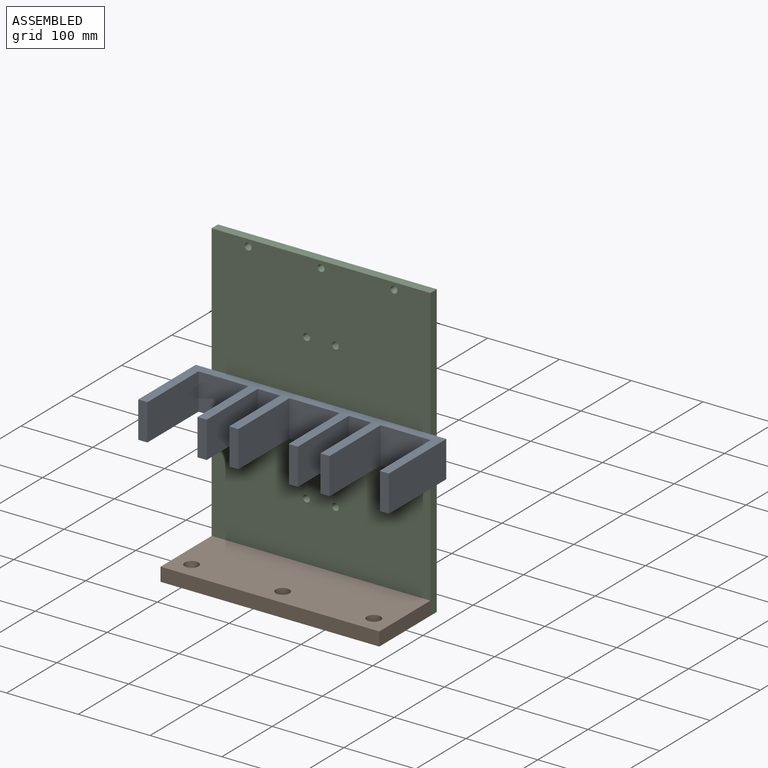
[diagram: assembled view]
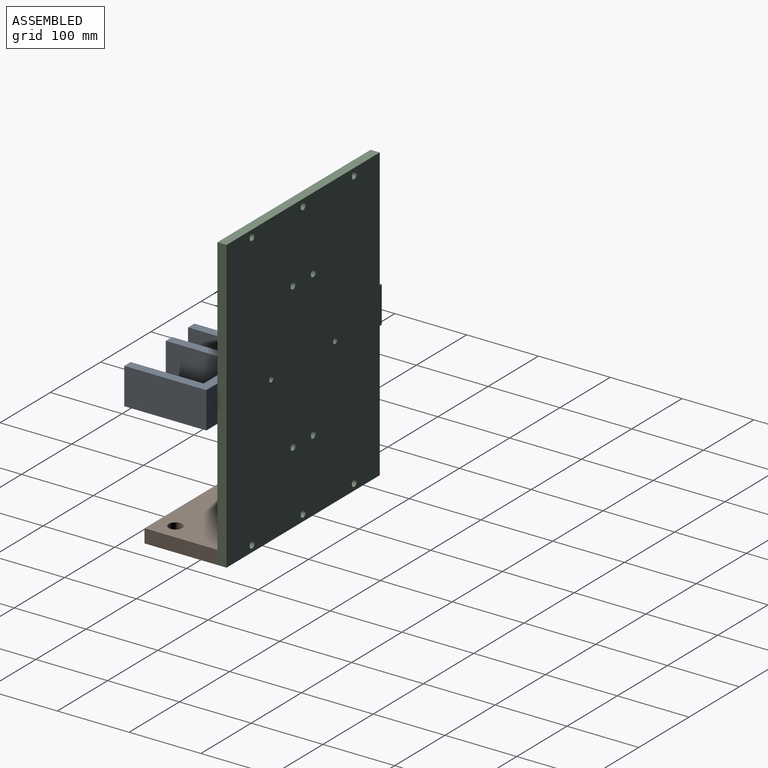
[diagram: assembled view, second angle]
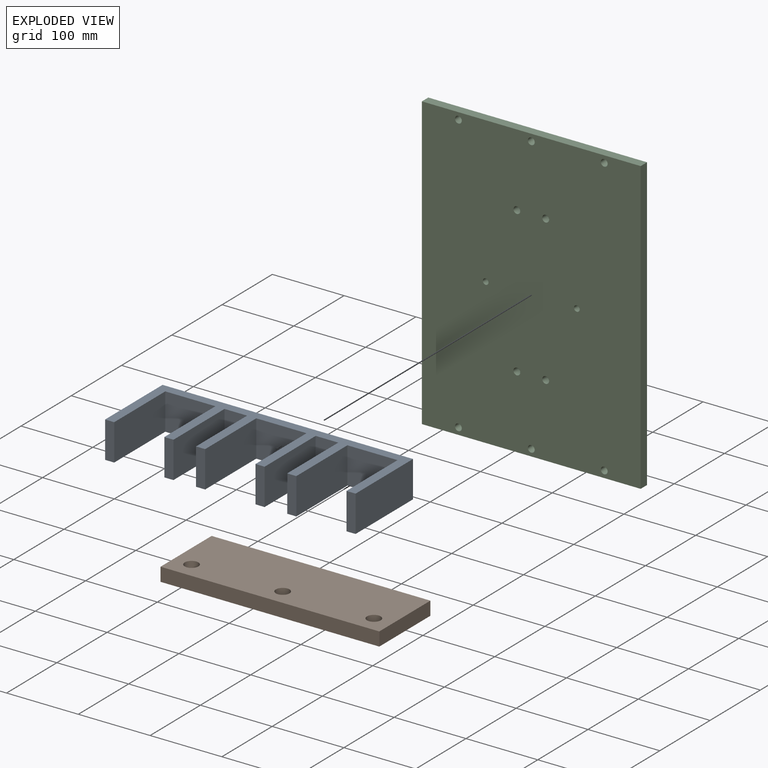
[diagram: exploded view]
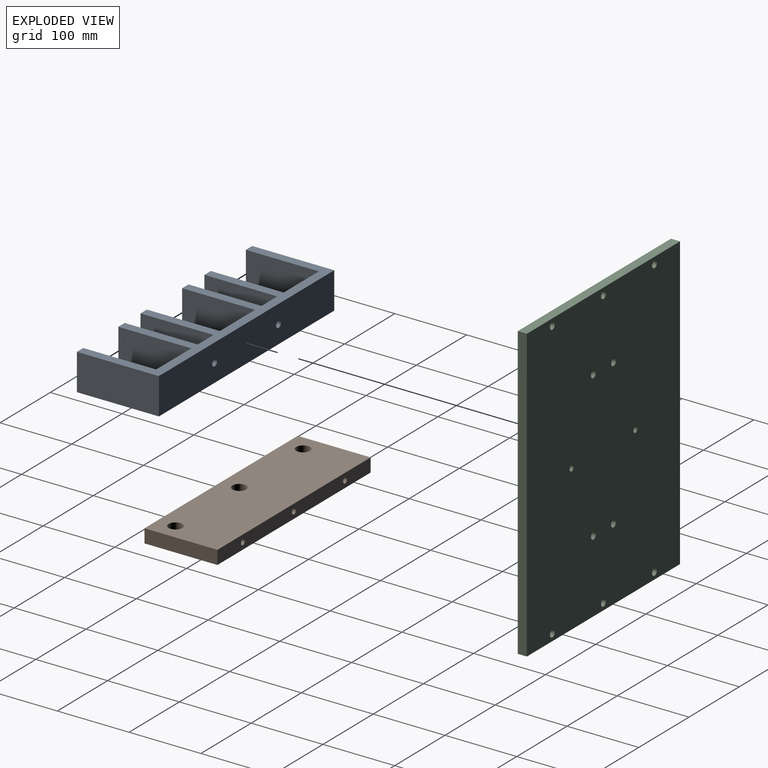
[diagram: exploded view, second angle]
ASSEMBLY  parts=3 mates=2
PART A: 28 faces, bbox 349x114.3x50.8 mm
  f0: plane 114.3x50.8mm, normal (1,0,0), area 5806.4mm2, adj f1,f23,f24,f25
  f1: plane 349x50.8mm, normal (0,1,0), area 17586.5mm2, adj f0,f2,f24,f25,f26,f27
  f2: plane 114.3x50.8mm, normal (-1,0,0), area 5806.4mm2, adj f1,f3,f24,f25
  f3: plane 50.8x12.7mm, normal (0,-1,0), area 645.2mm2, adj f2,f4,f24,f25
  f4: plane 101.6x50.8mm, normal (1,0,0), area 5161.3mm2, adj f3,f5,f24,f25
  f5: plane 69.85x50.8mm, normal (0,-1,0), area 3548.4mm2, adj f4,f6,f24,f25
  f6: plane 101.6x50.8mm, normal (-1,0,0), area 5161.3mm2, adj f5,f7,f24,f25
  f7: plane 50.8x12.7mm, normal (0,-1,0), area 645.2mm2, adj f6,f8,f24,f25
  f8: plane 101.6x50.8mm, normal (1,0,0), area 5161.3mm2, adj f7,f9,f24,f25
  f9: plane 50.8x31.5mm, normal (0,-1,0), area 1528.7mm2, adj f8,f10,f24,f25,f26
  f10: plane 101.6x50.8mm, normal (-1,0,0), area 5161.3mm2, adj f9,f11,f24,f25
  f11: plane 50.8x12.7mm, normal (0,-1,0), area 645.2mm2, adj f10,f12,f24,f25
  f12: plane 101.6x50.8mm, normal (1,0,0), area 5161.3mm2, adj f11,f13,f24,f25
  f13: plane 70.1x50.8mm, normal (0,-1,0), area 3561.3mm2, adj f12,f14,f24,f25
  f14: plane 101.6x50.8mm, normal (-1,0,0), area 5161.3mm2, adj f13,f15,f24,f25
  f15: plane 50.8x12.7mm, normal (0,-1,0), area 645.2mm2, adj f14,f16,f24,f25
  f16: plane 101.6x50.8mm, normal (1,0,0), area 5161.3mm2, adj f15,f17,f24,f25
  f17: plane 50.8x31.5mm, normal (0,-1,0), area 1528.7mm2, adj f16,f18,f24,f25,f27
  f18: plane 101.6x50.8mm, normal (-1,0,0), area 5161.3mm2, adj f17,f19,f24,f25
  f19: plane 50.8x12.7mm, normal (0,-1,0), area 645.2mm2, adj f18,f20,f24,f25
  f20: plane 101.6x50.8mm, normal (1,0,0), area 5161.3mm2, adj f19,f21,f24,f25
  f21: plane 69.85x50.8mm, normal (0,-1,0), area 3548.4mm2, adj f20,f22,f24,f25
  f22: plane 101.6x50.8mm, normal (-1,0,0), area 5161.3mm2, adj f21,f23,f24,f25
  f23: plane 50.8x12.7mm, normal (0,-1,0), area 645.2mm2, adj f0,f22,f24,f25
  f24: plane 349x114.3mm, normal (0,0,1), area 12174.2mm2, adj f0,f1,f2,f3,f4,f5,f6,f7
  f25: plane 349x114.3mm, normal (0,0,-1), area 12174.2mm2, adj f0,f1,f2,f3,f4,f5,f6,f7
  f26: cylinder r=4.76mm len=12.7mm, axis (0,-1,0), area 380mm2, adj f1,f9
  f27: cylinder r=4.76mm len=12.7mm, axis (0,-1,0), area 380mm2, adj f1,f17
PART B: 15 faces, bbox 304.8x101.6x19.1 mm
  f0: plane 101.6x19.05mm, normal (1,0,0), area 1935.5mm2, adj f1,f5,f7,f8
  f1: plane 304.8x19.05mm, normal (0,1,0), area 5658.5mm2, adj f0,f2,f7,f8,f9,f11,f13
  f2: plane 101.6x19.05mm, normal (-1,0,0), area 1935.5mm2, adj f1,f5,f7,f8
  f3: cylinder r=9.53mm len=19.05mm, axis (0,0,-1), area 1140.1mm2, adj f7,f8
  f4: cylinder r=9.53mm len=19.05mm, axis (0,0,-1), area 1140.1mm2, adj f7,f8
  f5: plane 304.8x19.05mm, normal (0,-1,0), area 5806.4mm2, adj f0,f2,f7,f8
  f6: cylinder r=9.53mm len=19.05mm, axis (0,0,-1), area 1140.1mm2, adj f7,f8
  f7: plane 304.8x101.6mm, normal (0,0,1), area 30112.6mm2, adj f0,f1,f2,f3,f4,f5,f6
  f8: plane 304.8x101.6mm, normal (0,0,-1), area 30112.6mm2, adj f0,f1,f2,f3,f4,f5,f6
  f9: cylinder r=3.96mm len=50.8mm, axis (0,1,0), area 1264.7mm2, adj f1,f10
  f10: plane 7.92x7.92mm, normal (0,1,0), area 49.3mm2, adj f9
  f11: cylinder r=3.96mm len=50.8mm, axis (0,1,0), area 1264.7mm2, adj f1,f12
  f12: plane 7.93x7.92mm, normal (0,1,0), area 49.3mm2, adj f11
  f13: cylinder r=3.96mm len=50.8mm, axis (0,1,0), area 1264.7mm2, adj f1,f14
  f14: plane 7.93x7.92mm, normal (0,1,0), area 49.3mm2, adj f13
PART C: 18 faces, bbox 304.8x12.7x406.4 mm
  f0: plane 406.4x12.7mm, normal (1,0,0), area 5161.3mm2, adj f1,f12,f14,f15
  f1: plane 304.8x12.7mm, normal (0,0,1), area 3871mm2, adj f0,f2,f14,f15
  f2: plane 406.4x12.7mm, normal (-1,0,0), area 5161.3mm2, adj f1,f12,f14,f15
  f3: cylinder r=4.76mm len=12.7mm, axis (0,1,0), area 380mm2, adj f14,f15
  f4: cylinder r=4.76mm len=12.7mm, axis (0,1,0), area 380mm2, adj f14,f15
  f5: cylinder r=4.76mm len=12.7mm, axis (0,1,0), area 380mm2, adj f14,f15
  f6: cylinder r=4.76mm len=12.7mm, axis (0,1,0), area 380mm2, adj f14,f15
  f7: cylinder r=4.76mm len=12.7mm, axis (0,1,0), area 380mm2, adj f14,f15
  f8: cylinder r=4.76mm len=12.7mm, axis (0,1,0), area 380mm2, adj f14,f15
  f9: cylinder r=4.76mm len=12.7mm, axis (0,1,0), area 380mm2, adj f14,f15
  f10: cylinder r=4.76mm len=12.7mm, axis (0,1,0), area 380mm2, adj f14,f15
  f11: cylinder r=4.76mm len=12.7mm, axis (0,1,0), area 380mm2, adj f14,f15
  f12: plane 304.8x12.7mm, normal (0,0,-1), area 3871mm2, adj f0,f2,f14,f15
  f13: cylinder r=4.76mm len=12.7mm, axis (0,1,0), area 380mm2, adj f14,f15
  f14: plane 406.4x304.8mm, normal (0,-1,0), area 123059.5mm2, adj f0,f1,f2,f3,f4,f5,f6,f7
  f15: plane 406.4x304.8mm, normal (0,1,0), area 123059.5mm2, adj f0,f1,f2,f3,f4,f5,f6,f7
  f16: cylinder r=3.96mm len=12.7mm, axis (0,-1,0), area 316.2mm2, adj f14,f15
  f17: cylinder r=3.96mm len=12.7mm, axis (0,-1,0), area 316.2mm2, adj f14,f15
PLACE A t=(-65.63,127.41,65.33)mm
PLACE B t=(-65.63,82.96,-112.47)mm
PLACE C t=(-65.63,146.46,90.73)mm
MATE slider C.f9 <-> B.f11  axis (0,-1,0) through (35.97,133.76,-102.95)mm
MATE fastened A.f1 <-> C.f14  axis (0,1,0) through (-65.63,133.76,90.73)mm
